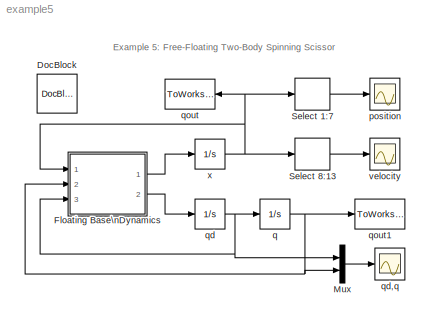
MODEL example5
KIND model
WORKSPACE source: external: M-Code  (data not in archive)
BLOCK [Reference] DocBlock  REF=simulink/Model-Wide\nUtilities/DocBlock
  DocumentType = Text
  FunctionWithSeparateData = off
  Ports = []
  RTWMemSecDataConstants = Inherit from model
  RTWMemSecDataInternal = Inherit from model
  RTWMemSecDataParameters = Inherit from model
  RTWMemSecFuncExecute = Inherit from model
  RTWMemSecFuncInitTerm = Inherit from model
  ShowPortLabels = FromPortIcon
  SourceBlock = simulink/Model-Wide\nUtilities/DocBlock
  SourceType = DocBlock
  SystemSampleTime = -1
  UserData = DataTag0
  UserDataPersistent = on
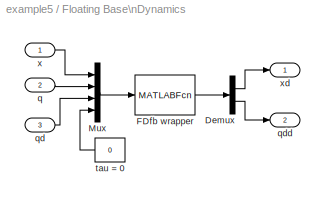
BLOCK [SubSystem] Floating Base\nDynamics
  FunctionWithSeparateData = off
  MaskHideContents = off
  MinAlgLoopOccurrences = off
  Opaque = off
  Ports = [3, 2]
  PropExecContextOutsideSubsystem = off
  RTWSystemCode = Auto
  RequestExecContextInheritance = off
BLOCK [Demux] Floating Base\nDynamics/Demux
  DisplayOption = bar
  Outputs = [13 1]
  Ports = [1, 2]
BLOCK [MATLABFcn] Floating Base\nDynamics/FDfb wrapper
  MATLABFcn = gcFD( scissor, @FDfb, u )
  Output1D = off
  OutputDimensions = [14 1]
  OutputSignalType = real
  Ports = [1, 1]
BLOCK [Mux] Floating Base\nDynamics/Mux
  DisplayOption = bar
  Ports = [4, 1]
BLOCK [Inport] Floating Base\nDynamics/q
  IconDisplay = Port number
  OutDataType = sfix(16)
  OutScaling = 2^0
  Port = 2
BLOCK [Inport] Floating Base\nDynamics/qd
  IconDisplay = Port number
  OutDataType = sfix(16)
  OutScaling = 2^0
  Port = 3
BLOCK [Outport] Floating Base\nDynamics/qdd
  IconDisplay = Port number
  OutDataType = sfix(16)
  OutScaling = 2^0
  Port = 2
BLOCK [Constant] Floating Base\nDynamics/tau = 0
  OutDataType = sfix(16)
  OutScaling = 2^0
  Value = 0
BLOCK [Inport] Floating Base\nDynamics/x
  IconDisplay = Port number
  OutDataType = sfix(16)
  OutScaling = 2^0
BLOCK [Outport] Floating Base\nDynamics/xd
  IconDisplay = Port number
  OutDataType = sfix(16)
  OutScaling = 2^0
BLOCK [Mux] Mux
  DisplayOption = bar
  Inputs = 2
  Ports = [2, 1]
BLOCK [Selector] Select 1:7
  IndexOptions = Index vector (dialog)
  Indices = [1 2 3 4 5 6 7]
  InputPortWidth = 13
  OutputSizes = 1
  Ports = [1, 1]
BLOCK [Selector] Select 8:13
  IndexOptions = Index vector (dialog)
  Indices = [8 9 10 11 12 13]
  InputPortWidth = 13
  OutputSizes = 1
  Ports = [1, 1]
BLOCK [Scope] position
  DataFormat = StructureWithTime
  Floating = off
  LimitDataPoints = off
  NumInputPorts = 1
  Ports = [1]
  SampleTime = 0
  SaveName = ScopeData1
  YMax = 1.5
  YMin = -1.5
BLOCK [Integrator] q
  InitialCondition = q_init
  Ports = [1, 1]
BLOCK [Integrator] qd
  Ports = [1, 1]
BLOCK [Scope] qd,q
  DataFormat = StructureWithTime
  Floating = off
  LimitDataPoints = off
  NumInputPorts = 1
  Ports = [1]
  SampleTime = 0
  SaveName = ScopeData2
  YMax = 7
  YMin = -2
BLOCK [ToWorkspace] qout
  MaxDataPoints = inf
  SampleTime = -1
  SaveFormat = Array
  VariableName = xout
BLOCK [ToWorkspace] qout1
  MaxDataPoints = inf
  SampleTime = -1
  SaveFormat = Array
  VariableName = qout
BLOCK [Scope] velocity
  DataFormat = StructureWithTime
  Floating = off
  LimitDataPoints = off
  NumInputPorts = 1
  Ports = [1]
  SampleTime = 0
  YMax = 4
  YMin = -2
BLOCK [Integrator] x
  InitialCondition = x_init
  Ports = [1, 1]
ANNOTATION (root): Example 5: Free-Floating Two-Body Spinning Scissor
LINE Floating Base\nDynamics/Demux:1 -> Floating Base\nDynamics/xd:1
LINE Floating Base\nDynamics/Demux:2 -> Floating Base\nDynamics/qdd:1
LINE Floating Base\nDynamics/FDfb wrapper:1 -> Floating Base\nDynamics/Demux:1
LINE Floating Base\nDynamics/Mux:1 -> Floating Base\nDynamics/FDfb wrapper:1
LINE Floating Base\nDynamics/q:1 -> Floating Base\nDynamics/Mux:2
LINE Floating Base\nDynamics/qd:1 -> Floating Base\nDynamics/Mux:3
LINE Floating Base\nDynamics/tau = 0:1 -> Floating Base\nDynamics/Mux:4
LINE Floating Base\nDynamics/x:1 -> Floating Base\nDynamics/Mux:1
LINE Floating Base\nDynamics:1 -> x:1
LINE Floating Base\nDynamics:2 -> qd:1
LINE Mux:1 -> qd,q:1
LINE Select 1:7:1 -> position:1
LINE Select 8:13:1 -> velocity:1
NET q:1 -> Floating Base\nDynamics:2, Mux:2, qout1:1
NET qd:1 -> Floating Base\nDynamics:3, Mux:1, q:1
NET x:1 -> Floating Base\nDynamics:1, Select 1:7:1, Select 8:13:1, qout:1
note: NET lines group one-source signal fan-out (src -> all destinations, sorted); 1:1 wires keep LINE
